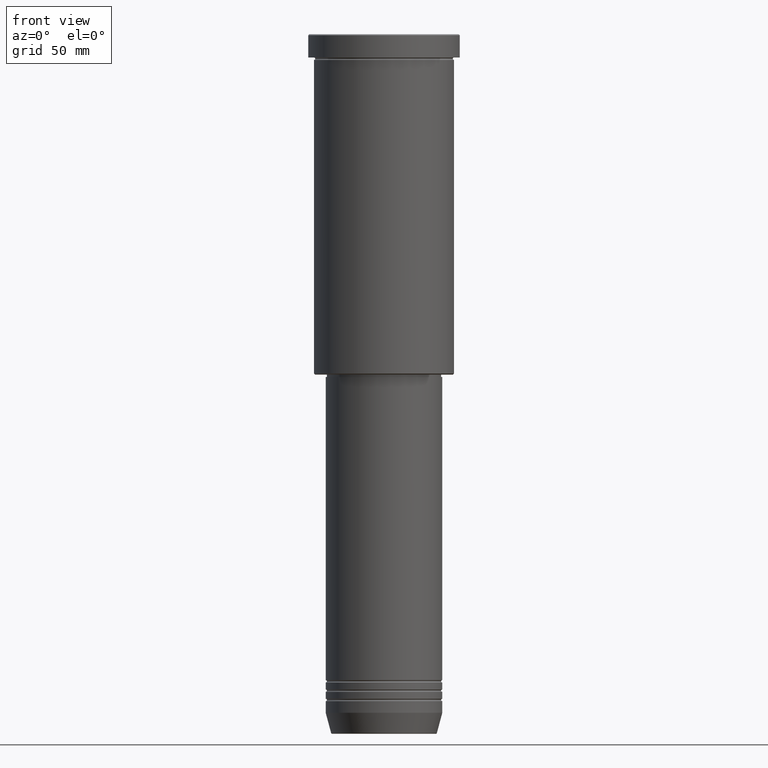
[diagram: clean part render]
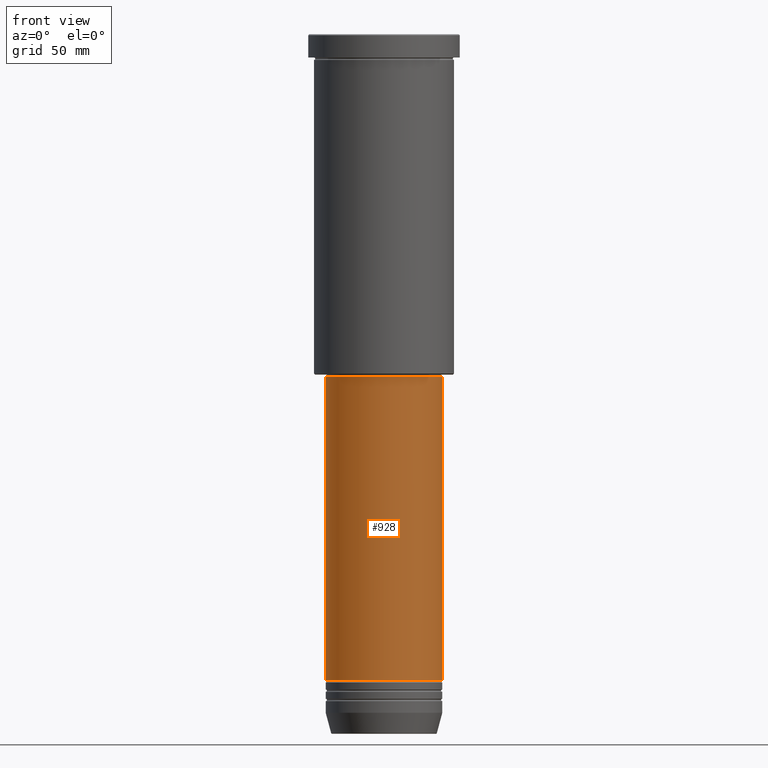
[diagram: same view with one face highlighted and labeled with its STEP entity id]
A machine part, front view. The second image highlights one B-rep face of the part: STEP entity #928.
In plain terms, the highlighted cylindrical surface (partial cylindrical patch) has radius 25 mm, axis along (-0, -0, 1).
Its self-contained STEP definition (entity closure, byte-faithful):
#55 = AXIS2_PLACEMENT_3D ( 'NONE', #141, #237, #321 ) ;
#116 = EDGE_CURVE ( 'NONE', #1101, #804, #208, .T. ) ;
#121 = AXIS2_PLACEMENT_3D ( 'NONE', #1085, #340, #221 ) ;
#141 = CARTESIAN_POINT ( 'NONE',  ( 0.000000000000000000, 0.000000000000000000, 0.000000000000000000 ) ) ;
#184 = EDGE_LOOP ( 'NONE', ( #591, #927, #1045, #569 ) ) ;
#208 = CIRCLE ( 'NONE', #1138, 25.00000000000000000 ) ;
#216 = VERTEX_POINT ( 'NONE', #971 ) ;
#221 = DIRECTION ( 'NONE',  ( 1.000000000000000000, 0.000000000000000000, 0.000000000000000000 ) ) ;
#237 = DIRECTION ( 'NONE',  ( -0.000000000000000000, -0.000000000000000000, 1.000000000000000000 ) ) ;
#247 = CARTESIAN_POINT ( 'NONE',  ( -25.00000000000001066, 3.061616997868384226E-15, -147.0000000000000000 ) ) ;
#262 = DIRECTION ( 'NONE',  ( -0.000000000000000000, -0.000000000000000000, 1.000000000000000000 ) ) ;
#321 = DIRECTION ( 'NONE',  ( 1.000000000000000000, 0.000000000000000000, 0.000000000000000000 ) ) ;
#329 = DIRECTION ( 'NONE',  ( -0.000000000000000000, -0.000000000000000000, 1.000000000000000000 ) ) ;
#340 = DIRECTION ( 'NONE',  ( -0.000000000000000000, -0.000000000000000000, 1.000000000000000000 ) ) ;
#360 = CARTESIAN_POINT ( 'NONE',  ( 25.00000000000000355, 0.000000000000000000, 0.000000000000000000 ) ) ;
#424 = CARTESIAN_POINT ( 'NONE',  ( -25.00000000000000355, 3.061616997868383437E-15, 0.000000000000000000 ) ) ;
#465 = EDGE_CURVE ( 'NONE', #835, #216, #693, .T. ) ;
#496 = LINE ( 'NONE', #424, #695 ) ;
#502 = FACE_OUTER_BOUND ( 'NONE', #184, .T. ) ;
#506 = EDGE_CURVE ( 'NONE', #804, #216, #533, .T. ) ;
#533 = LINE ( 'NONE', #360, #824 ) ;
#553 = DIRECTION ( 'NONE',  ( 1.000000000000000000, 0.000000000000000000, 0.000000000000000000 ) ) ;
#569 = ORIENTED_EDGE ( 'NONE', *, *, #465, .F. ) ;
#591 = ORIENTED_EDGE ( 'NONE', *, *, #833, .F. ) ;
#693 = CIRCLE ( 'NONE', #121, 25.00000000000000711 ) ;
#695 = VECTOR ( 'NONE', #329, 1000.000000000000000 ) ;
#804 = VERTEX_POINT ( 'NONE', #1155 ) ;
#824 = VECTOR ( 'NONE', #262, 1000.000000000000000 ) ;
#833 = EDGE_CURVE ( 'NONE', #1101, #835, #496, .T. ) ;
#835 = VERTEX_POINT ( 'NONE', #247 ) ;
#920 = CARTESIAN_POINT ( 'NONE',  ( -25.00000000000000000, 3.061616997868383437E-15, -276.9999999999999432 ) ) ;
#927 = ORIENTED_EDGE ( 'NONE', *, *, #116, .T. ) ;
#928 = ADVANCED_FACE ( 'NONE', ( #502 ), #1064, .T. ) ;
#971 = CARTESIAN_POINT ( 'NONE',  ( 25.00000000000000711, 0.000000000000000000, -147.0000000000000000 ) ) ;
#1013 = DIRECTION ( 'NONE',  ( -0.000000000000000000, -0.000000000000000000, 1.000000000000000000 ) ) ;
#1045 = ORIENTED_EDGE ( 'NONE', *, *, #506, .T. ) ;
#1064 = CYLINDRICAL_SURFACE ( 'NONE', #55, 25.00000000000000355 ) ;
#1085 = CARTESIAN_POINT ( 'NONE',  ( 0.000000000000000000, 0.000000000000000000, -147.0000000000000000 ) ) ;
#1101 = VERTEX_POINT ( 'NONE', #920 ) ;
#1104 = CARTESIAN_POINT ( 'NONE',  ( 0.000000000000000000, 0.000000000000000000, -276.9999999999999432 ) ) ;
#1138 = AXIS2_PLACEMENT_3D ( 'NONE', #1104, #1013, #553 ) ;
#1155 = CARTESIAN_POINT ( 'NONE',  ( 25.00000000000000000, 0.000000000000000000, -276.9999999999999432 ) ) ;